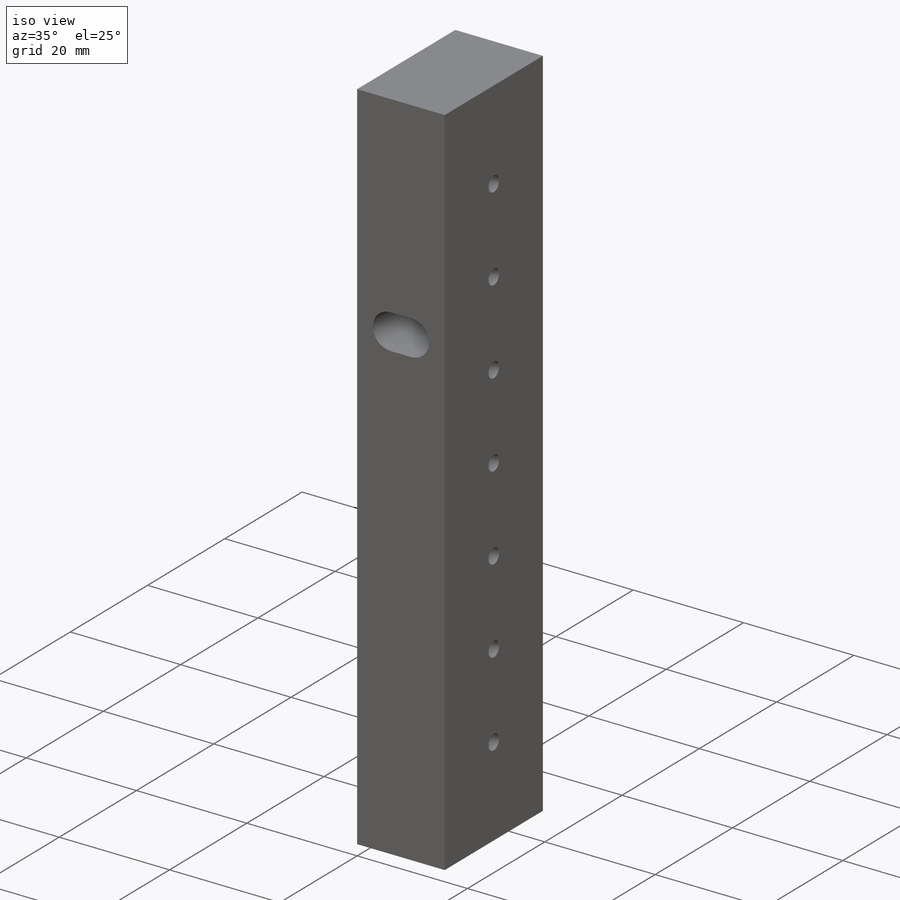
[diagram: iso view]
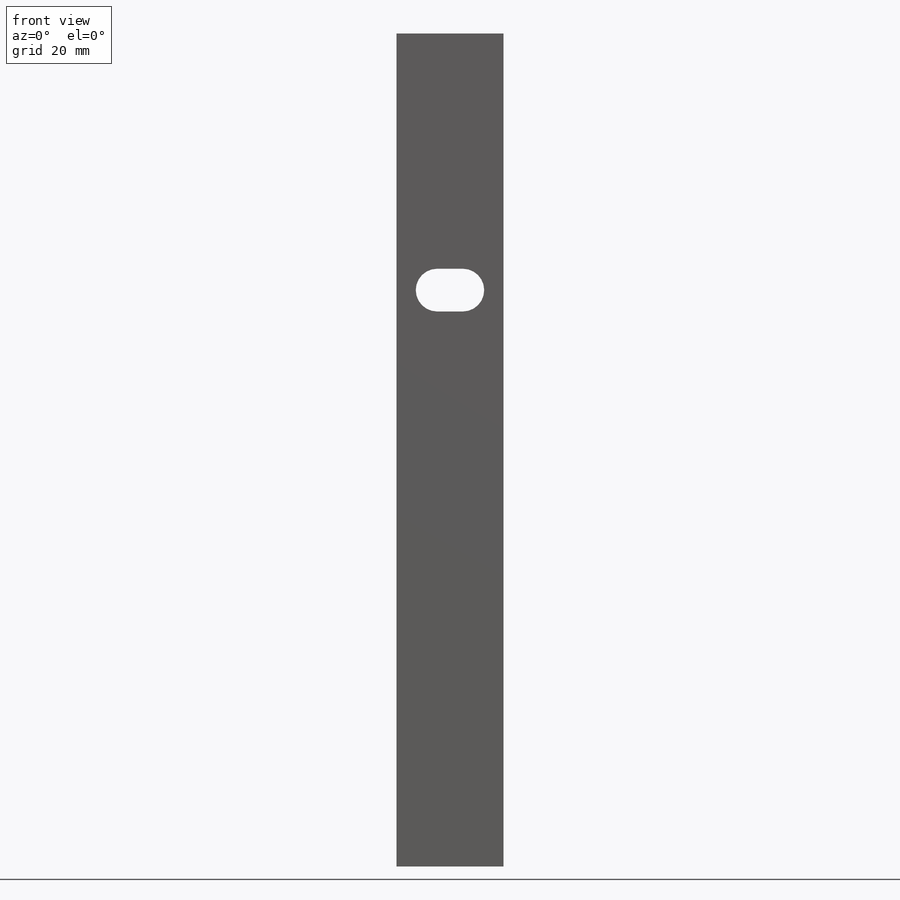
[diagram: front view]
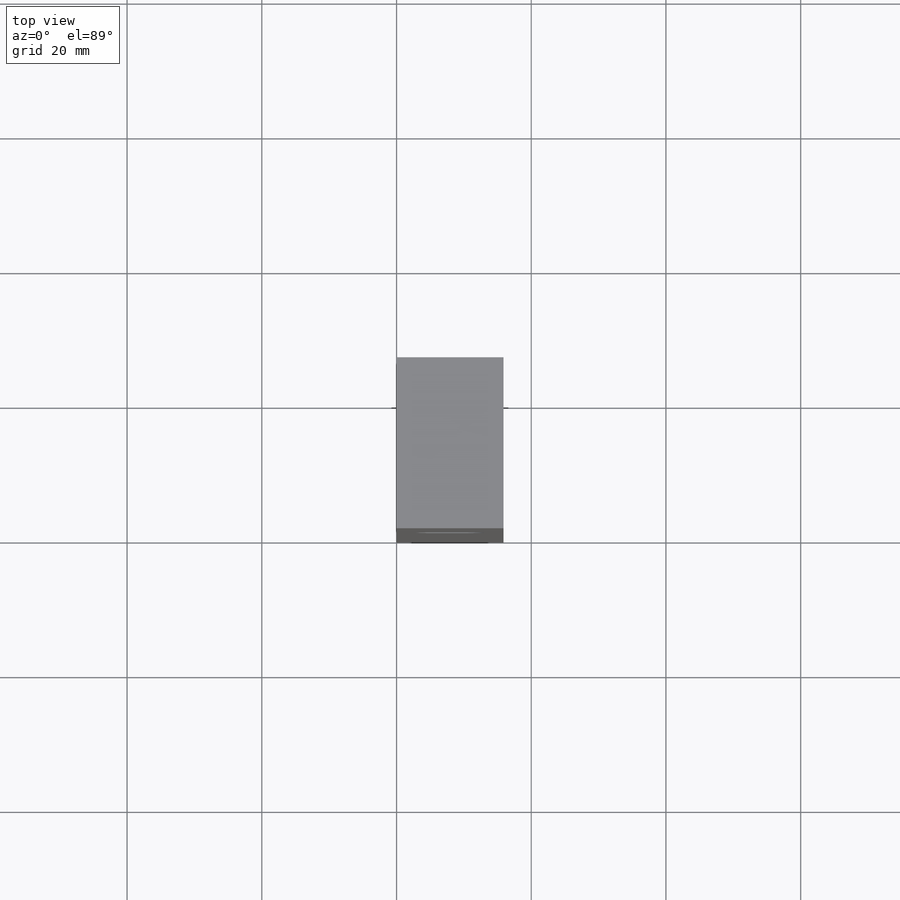
[diagram: top view]
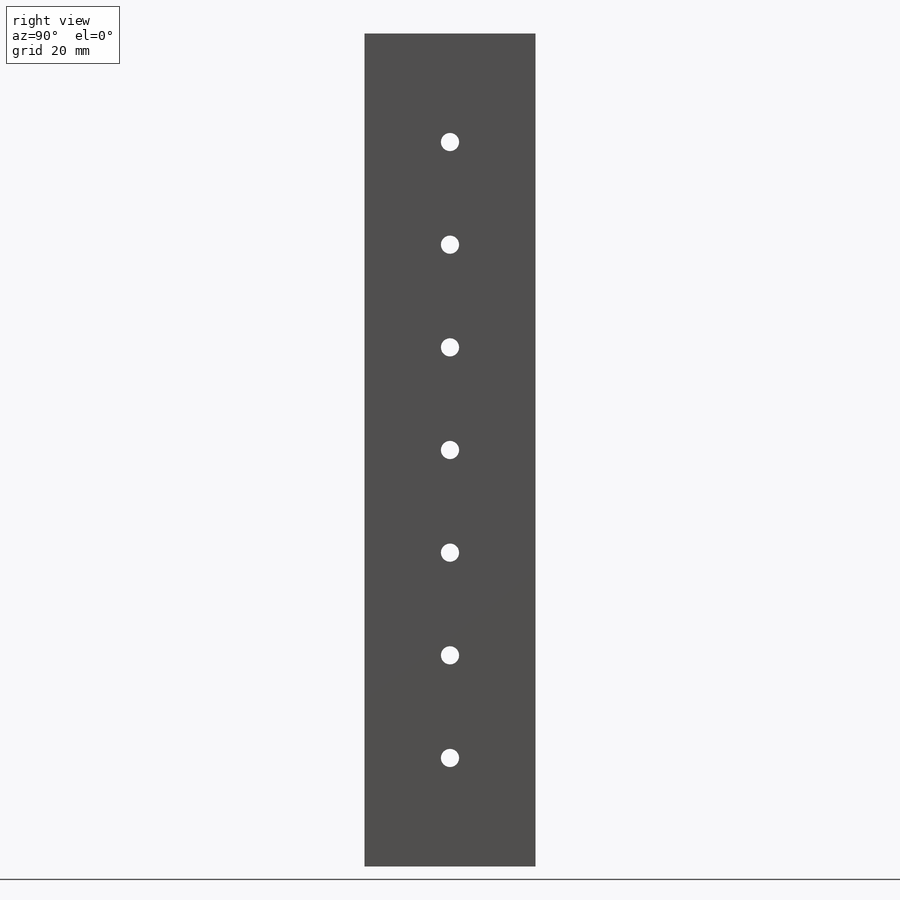
[diagram: right view]
SOLIDWORKS PART (.sldprt)
format: sldprt  version: not decoded by parser v0  size: 250,880 bytes
history: native  units: mm
features: sketch x9, hole x4, material x1, extrude x1 (+13 scaffold rows collapsed)
feature tree (28):
  scaffold x13  (default folders/planes/origin — collapsed)
  material  "Material <not specified>"
  sketch  "Sketch1"  dims[D1=15.875mm D2=25.4mm]
  extrude  "Boss-Extrude1"  Depth=123.6726mm
  hole  "Tap Drill for #10-24 Tap1"  Diameter=3.7973mm Depth=20.701mm
  sketch  "Sketch3"  dims[D1=6.0mm D2=6.0mm]
  sketch  "Sketch4"  dims[hole-wizard template sketch: 47 standard entries collapsed; hole parameters kept: c15.Hole Depth=20.701mm c15.D3=~14.816244mm c15.Drill Angle=118.0deg]
  hole  "Tap Drill for #6-32 Tap1"  Diameter=2.7051mm Depth=15.875mm
  sketch  "Sketch6"  dims[D1=15.24mm D2=15.24mm D3=15.24mm D4=15.24mm D5=15.24mm D6=15.24mm D7=16.1163mm]
  sketch  "Sketch5"  dims[hole-wizard template sketch: 60 standard entries collapsed; hole parameters kept: c18.Thru Hole Depth=15.875mm]
  hole  "Tap Drill Slot for #10-24 Tap1"  Diameter=6.35mm Depth=25.4mm
  sketch  "Sketch7"  dims[D1=10.16mm]
  sketch  "Sketch8"  dims[Thru Hole Dia.=6.35mm Thru Hole Depth=25.4mm]
  hole  "Tap Drill Slot for #10-24 Tap2"  Diameter=6.35mm Depth=25.4mm
  sketch  "Sketch9"  dims[D1=10.16mm]
  sketch  "Sketch10"  dims[Thru Hole Dia.=6.35mm Thru Hole Depth=25.4mm]
decode coverage: 14 of 14 modeling features carry decoded parameters
note: ~ marks probable driven/reference dimensions
summary: Diameter pulled from absorbed wizard sketch
note: suppression state not decoded; provenance and decode notes live in map.json
